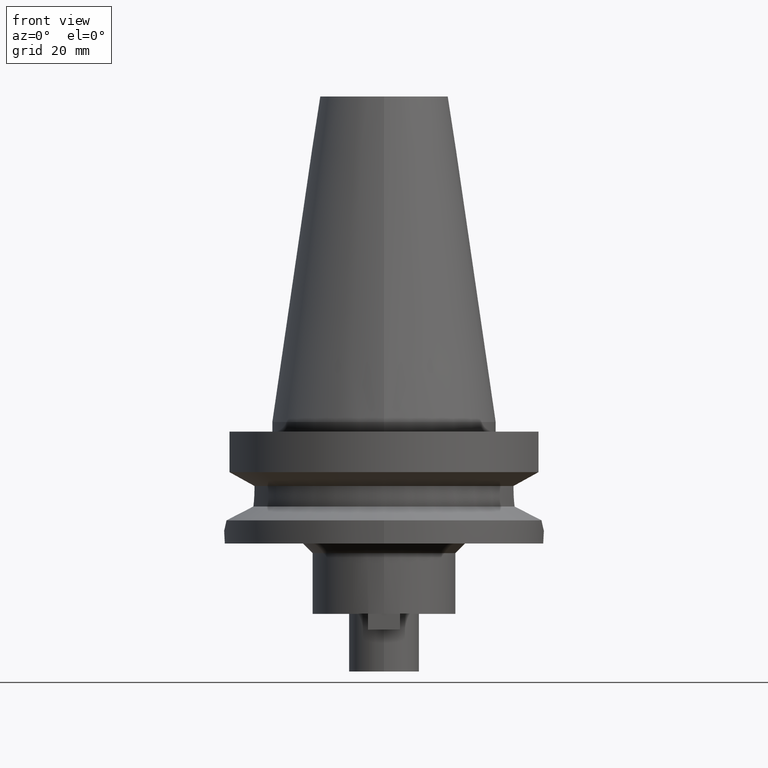
[diagram: clean part render]
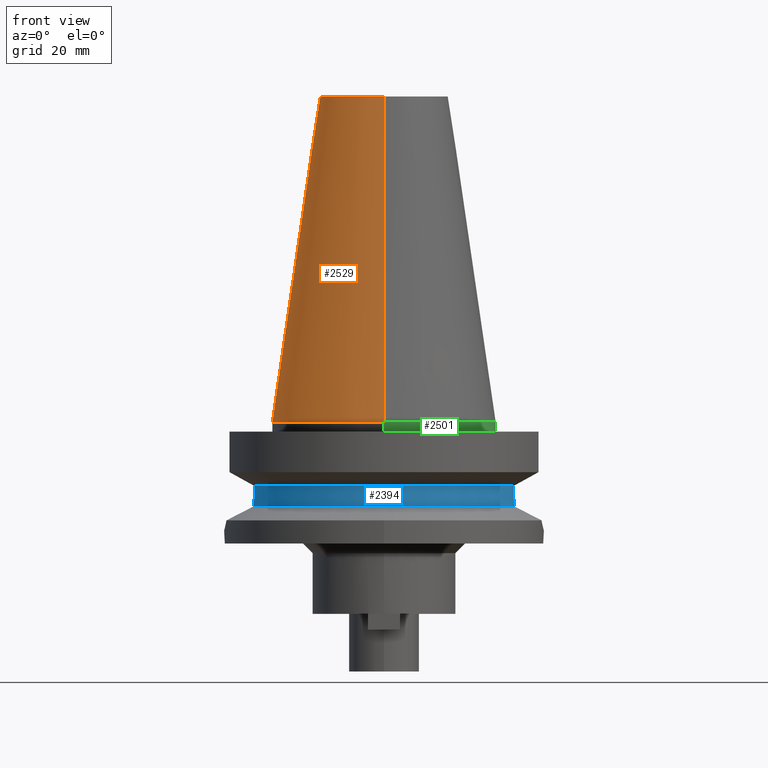
[diagram: same view with three faces highlighted in distinct colors, each labeled with its STEP entity id]
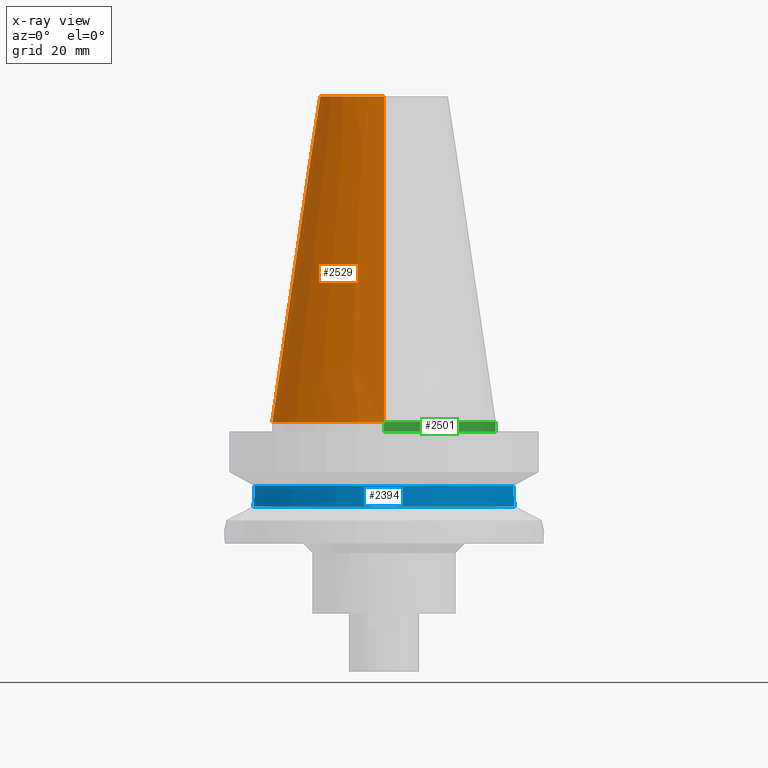
[diagram: x-ray of the same camera — body ghosted, the three highlighted faces saturated]
A machine part, front view with three faces highlighted in distinct colors.
The next image is the same camera in x-ray (body ghosted, the three faces saturated) — at least one of them is partly hidden behind the body in this view.
Their STEP definitions:

[orange] entity #2529 — the highlighted conical surface has half-angle 8.297 deg.
#1206=DIRECTION('',(0.E0,-1.443043893539E-1,-9.895333461856E-1));
#1207=VECTOR('',#1206,1.028767755957E2);
#1208=CARTESIAN_POINT('',(0.E0,-2.007942971896E1,1.018E2));
#1209=LINE('',#1208,#1207);
#1213=CARTESIAN_POINT('',(0.E0,1.847992019913E-14,3.979039320257E-13));
#1214=DIRECTION('',(0.E0,0.E0,-1.E0));
#1215=DIRECTION('',(0.E0,-1.E0,0.E0));
#1216=AXIS2_PLACEMENT_3D('',#1213,#1214,#1215);
#1221=DIRECTION('',(0.E0,1.443043893539E-1,-9.895333461856E-1));
#1222=VECTOR('',#1221,1.028767755957E2);
#1223=CARTESIAN_POINT('',(0.E0,2.007942971896E1,1.018E2));
#1224=LINE('',#1223,#1222);
#1236=CARTESIAN_POINT('',(0.E0,1.847992019913E-14,1.018E2));
#1237=DIRECTION('',(0.E0,0.E0,-1.E0));
#1238=DIRECTION('',(0.E0,-1.E0,0.E0));
#1239=AXIS2_PLACEMENT_3D('',#1236,#1237,#1238);
#1515=CARTESIAN_POINT('',(0.E0,3.4925E1,4.547473508865E-13));
#1516=VERTEX_POINT('',#1515);
#1517=CARTESIAN_POINT('',(0.E0,-3.4925E1,4.547473508865E-13));
#1518=VERTEX_POINT('',#1517);
#1519=CARTESIAN_POINT('',(0.E0,2.007942971896E1,1.018E2));
#1520=VERTEX_POINT('',#1519);
#1521=CARTESIAN_POINT('',(0.E0,-2.007942971896E1,1.018E2));
#1522=VERTEX_POINT('',#1521);
#2515=CARTESIAN_POINT('',(0.E0,1.847992019913E-14,5.09E1));
#2516=DIRECTION('',(0.E0,0.E0,-1.E0));
#2517=DIRECTION('',(0.E0,-1.E0,0.E0));
#2518=AXIS2_PLACEMENT_3D('',#2515,#2516,#2517);
#2519=CONICAL_SURFACE('',#2518,2.750221485948E1,8.297E0);
#2521=ORIENTED_EDGE('',*,*,#2520,.F.);
#2523=ORIENTED_EDGE('',*,*,#2522,.F.);
#2525=ORIENTED_EDGE('',*,*,#2524,.T.);
#2526=ORIENTED_EDGE('',*,*,#2508,.T.);
#2527=EDGE_LOOP('',(#2521,#2523,#2525,#2526));
#2528=FACE_OUTER_BOUND('',#2527,.F.);
#1217=CIRCLE('',#1216,3.4925E1);
#1240=CIRCLE('',#1239,2.007942971896E1);
#2508=EDGE_CURVE('',#1518,#1516,#1217,.T.);
#2520=EDGE_CURVE('',#1520,#1516,#1224,.T.);
#2522=EDGE_CURVE('',#1522,#1520,#1240,.T.);
#2524=EDGE_CURVE('',#1522,#1518,#1209,.T.);
#2529=ADVANCED_FACE('',(#2528),#2519,.T.);

[blue] entity #2394 — the highlighted cylindrical surface (partial cylindrical patch) has radius 42.5 mm, axis along (0, 0, -1).
#708=CARTESIAN_POINT('',(-4.085052569294E1,-1.172538061688E1,
-2.640718074535E1));
#713=CARTESIAN_POINT('',(0.E0,0.E0,-2.640718074535E1));
#714=DIRECTION('',(0.E0,0.E0,1.E0));
#715=DIRECTION('',(-9.611888398338E-1,-2.758913086325E-1,0.E0));
#716=AXIS2_PLACEMENT_3D('',#713,#714,#715);
#721=CARTESIAN_POINT('',(0.E0,0.E0,-2.640718074535E1));
#722=DIRECTION('',(0.E0,0.E0,1.E0));
#723=DIRECTION('',(0.E0,-1.E0,0.E0));
#724=AXIS2_PLACEMENT_3D('',#721,#722,#723);
#729=CARTESIAN_POINT('',(4.085052569294E1,-1.172538061688E1,-2.640718074535E1));
#1046=CARTESIAN_POINT('',(-4.085052569294E1,-1.172538061688E1,
-2.640718074535E1));
#1047=CARTESIAN_POINT('',(-4.077854327115E1,-1.197616307477E1,
-2.584784677659E1));
#1048=CARTESIAN_POINT('',(-4.065472271207E1,-1.239073162697E1,
-2.471136879754E1));
#1049=CARTESIAN_POINT('',(-4.053737510034E1,-1.276678357057E1,
-2.294120226878E1));
#1050=CARTESIAN_POINT('',(-4.051083188482E1,-1.285E1,-2.175065147888E1));
#1051=CARTESIAN_POINT('',(-4.051083188482E1,-1.285E1,-2.115E1));
#1056=DIRECTION('',(-9.693834546337E-7,3.056074988242E-6,9.999999999949E-1));
#1057=VECTOR('',#1056,1.157153606322E0);
#1058=CARTESIAN_POINT('',(-4.051083188482E1,-1.285E1,-2.115E1));
#1059=LINE('',#1058,#1057);
#1063=DIRECTION('',(-9.730957608795E-7,-3.067778413890E-6,-9.999999999948E-1));
#1064=VECTOR('',#1063,1.157153502391E0);
#1065=CARTESIAN_POINT('',(4.051083301084E1,-1.284999645011E1,
-1.999284649762E1));
#1066=LINE('',#1065,#1064);
#1070=CARTESIAN_POINT('',(4.051083188482E1,-1.285E1,-2.115E1));
#1071=CARTESIAN_POINT('',(4.051083188482E1,-1.285E1,-2.175069940276E1));
#1072=CARTESIAN_POINT('',(4.053737939728E1,-1.276677010615E1,
-2.294131373626E1));
#1073=CARTESIAN_POINT('',(4.065473259263E1,-1.239069934061E1,
-2.471147259509E1));
#1074=CARTESIAN_POINT('',(4.077854870214E1,-1.197614415352E1,
-2.584788897769E1));
#1075=CARTESIAN_POINT('',(4.085052569294E1,-1.172538061688E1,
-2.640718074535E1));
#1096=CARTESIAN_POINT('',(0.E0,1.006319759054E-14,-1.999281925465E1));
#1097=DIRECTION('',(0.E0,0.E0,-1.E0));
#1098=DIRECTION('',(9.531960443487E-1,-3.023529411765E-1,0.E0));
#1099=AXIS2_PLACEMENT_3D('',#1096,#1097,#1098);
#1104=CARTESIAN_POINT('',(0.E0,1.006319759054E-14,-1.999281925465E1));
#1105=DIRECTION('',(0.E0,0.E0,-1.E0));
#1106=DIRECTION('',(0.E0,-1.E0,0.E0));
#1107=AXIS2_PLACEMENT_3D('',#1104,#1105,#1106);
#1449=VERTEX_POINT('',#729);
#1450=VERTEX_POINT('',#1070);
#1461=VERTEX_POINT('',#708);
#1462=CARTESIAN_POINT('',(0.E0,-4.25E1,-2.640718074535E1));
#1463=VERTEX_POINT('',#1462);
#1475=CARTESIAN_POINT('',(-4.051083188482E1,-1.285E1,-2.115E1));
#1476=VERTEX_POINT('',#1475);
#1477=CARTESIAN_POINT('',(-4.051083300654E1,-1.284999646365E1,
-1.999284639368E1));
#1478=VERTEX_POINT('',#1477);
#1479=CARTESIAN_POINT('',(4.051083188482E1,-1.285E1,-1.999281925465E1));
#1480=CARTESIAN_POINT('',(0.E0,-4.25E1,-1.999281925465E1));
#1481=VERTEX_POINT('',#1479);
#1482=VERTEX_POINT('',#1480);
#2376=CARTESIAN_POINT('',(0.E0,2.581432987923E-14,1.1079E2));
#2377=DIRECTION('',(0.E0,0.E0,-1.E0));
#2378=DIRECTION('',(0.E0,-1.E0,0.E0));
#2379=AXIS2_PLACEMENT_3D('',#2376,#2377,#2378);
#2380=CYLINDRICAL_SURFACE('',#2379,4.25E1);
#2381=ORIENTED_EDGE('',*,*,#2223,.T.);
#2382=ORIENTED_EDGE('',*,*,#2364,.T.);
#2384=ORIENTED_EDGE('',*,*,#2383,.F.);
#2386=ORIENTED_EDGE('',*,*,#2385,.F.);
#2388=ORIENTED_EDGE('',*,*,#2387,.T.);
#2389=ORIENTED_EDGE('',*,*,#2168,.T.);
#2390=ORIENTED_EDGE('',*,*,#2194,.F.);
#2391=ORIENTED_EDGE('',*,*,#2192,.F.);
#2392=EDGE_LOOP('',(#2381,#2382,#2384,#2386,#2388,#2389,#2390,#2391));
#2393=FACE_OUTER_BOUND('',#2392,.F.);
#717=CIRCLE('',#716,4.25E1);
#725=CIRCLE('',#724,4.25E1);
#1052=B_SPLINE_CURVE_WITH_KNOTS('',3,(#1046,#1047,#1048,#1049,#1050,#1051),
.UNSPECIFIED.,.F.,.F.,(4,1,1,4),(0.E0,3.333333333333E-1,6.666666666667E-1,1.E0),
.UNSPECIFIED.);
#1076=B_SPLINE_CURVE_WITH_KNOTS('',3,(#1070,#1071,#1072,#1073,#1074,#1075),
.UNSPECIFIED.,.F.,.F.,(4,1,1,4),(0.E0,3.333333333333E-1,6.666666666667E-1,1.E0),
.UNSPECIFIED.);
#1100=CIRCLE('',#1099,4.25E1);
#1108=CIRCLE('',#1107,4.25E1);
#2168=EDGE_CURVE('',#1450,#1449,#1076,.T.);
#2192=EDGE_CURVE('',#1461,#1463,#717,.T.);
#2194=EDGE_CURVE('',#1463,#1449,#725,.T.);
#2223=EDGE_CURVE('',#1461,#1476,#1052,.T.);
#2364=EDGE_CURVE('',#1476,#1478,#1059,.T.);
#2383=EDGE_CURVE('',#1482,#1478,#1108,.T.);
#2385=EDGE_CURVE('',#1481,#1482,#1100,.T.);
#2387=EDGE_CURVE('',#1481,#1450,#1066,.T.);
#2394=ADVANCED_FACE('',(#2393),#2380,.T.);

[green] entity #2501 — the highlighted cylindrical surface (partial cylindrical patch) has radius 34.925 mm, axis along (0, 0, -1).
#983=CARTESIAN_POINT('',(0.E0,2.581432987923E-14,-3.E0));
#984=DIRECTION('',(0.E0,0.E0,1.E0));
#985=DIRECTION('',(0.E0,-1.E0,0.E0));
#986=AXIS2_PLACEMENT_3D('',#983,#984,#985);
#1192=DIRECTION('',(0.E0,-2.131628207280E-13,-1.E0));
#1193=VECTOR('',#1192,3.E0);
#1194=CARTESIAN_POINT('',(0.E0,3.4925E1,4.547473508865E-13));
#1195=LINE('',#1194,#1193);
#1199=DIRECTION('',(0.E0,2.107943449421E-13,-1.E0));
#1200=VECTOR('',#1199,3.E0);
#1201=CARTESIAN_POINT('',(0.E0,-3.4925E1,4.547473508865E-13));
#1202=LINE('',#1201,#1200);
#1228=CARTESIAN_POINT('',(0.E0,1.847992019913E-14,3.979039320257E-13));
#1229=DIRECTION('',(0.E0,0.E0,-1.E0));
#1230=DIRECTION('',(0.E0,1.E0,0.E0));
#1231=AXIS2_PLACEMENT_3D('',#1228,#1229,#1230);
#1511=CARTESIAN_POINT('',(0.E0,-3.4925E1,-3.E0));
#1512=CARTESIAN_POINT('',(0.E0,3.4925E1,-3.E0));
#1513=VERTEX_POINT('',#1511);
#1514=VERTEX_POINT('',#1512);
#1515=CARTESIAN_POINT('',(0.E0,3.4925E1,4.547473508865E-13));
#1516=VERTEX_POINT('',#1515);
#1517=CARTESIAN_POINT('',(0.E0,-3.4925E1,4.547473508865E-13));
#1518=VERTEX_POINT('',#1517);
#2487=CARTESIAN_POINT('',(0.E0,2.581432987923E-14,1.1079E2));
#2488=DIRECTION('',(0.E0,0.E0,-1.E0));
#2489=DIRECTION('',(0.E0,-1.E0,0.E0));
#2490=AXIS2_PLACEMENT_3D('',#2487,#2488,#2489);
#2491=CYLINDRICAL_SURFACE('',#2490,3.4925E1);
#2493=ORIENTED_EDGE('',*,*,#2492,.T.);
#2494=ORIENTED_EDGE('',*,*,#2337,.F.);
#2496=ORIENTED_EDGE('',*,*,#2495,.F.);
#2498=ORIENTED_EDGE('',*,*,#2497,.F.);
#2499=EDGE_LOOP('',(#2493,#2494,#2496,#2498));
#2500=FACE_OUTER_BOUND('',#2499,.F.);
#987=CIRCLE('',#986,3.4925E1);
#1232=CIRCLE('',#1231,3.4925E1);
#2337=EDGE_CURVE('',#1513,#1514,#987,.T.);
#2492=EDGE_CURVE('',#1516,#1514,#1195,.T.);
#2495=EDGE_CURVE('',#1518,#1513,#1202,.T.);
#2497=EDGE_CURVE('',#1516,#1518,#1232,.T.);
#2501=ADVANCED_FACE('',(#2500),#2491,.T.);